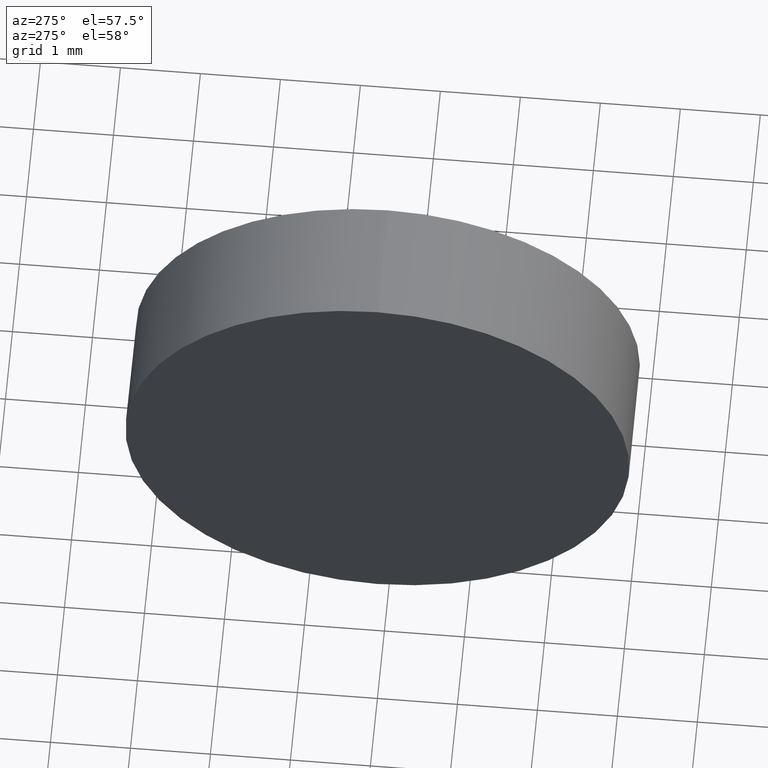
[diagram: clean part render]
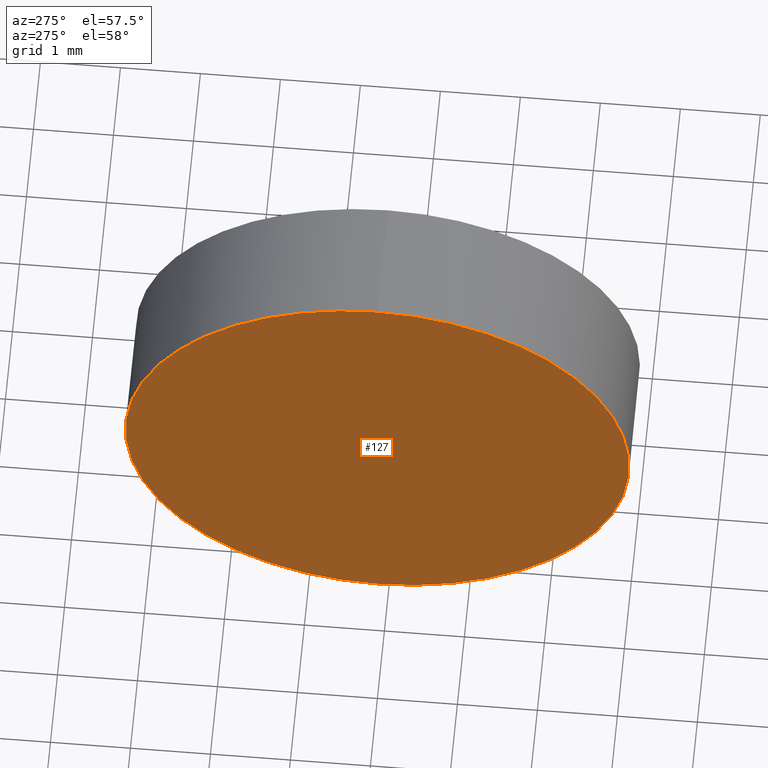
[diagram: same view with one face highlighted and labeled with its STEP entity id]
A machine part, auxiliary view. The second image highlights one B-rep face of the part: STEP entity #127.
In plain terms, the highlighted planar face has unit normal (1, 0, 0).
Its self-contained STEP definition (entity closure, byte-faithful):
#10 = CIRCLE ( 'NONE', #183, 3.149999999999986100 ) ;
#30 = PLANE ( 'NONE',  #54 ) ;
#32 = CARTESIAN_POINT ( 'NONE',  ( 633.5970500243175800, 229.1405012617116200, 0.0000000000000000000 ) ) ;
#48 = CARTESIAN_POINT ( 'NONE',  ( 633.5970500243175800, 229.1405012617116200, 0.0000000000000000000 ) ) ;
#54 = AXIS2_PLACEMENT_3D ( 'NONE', #48, #135, #156 ) ;
#57 = EDGE_LOOP ( 'NONE', ( #98, #85 ) ) ;
#64 = VERTEX_POINT ( 'NONE', #155 ) ;
#71 = DIRECTION ( 'NONE',  ( -1.000000000000000000, -0.0000000000000000000, -0.0000000000000000000 ) ) ;
#74 = FACE_OUTER_BOUND ( 'NONE', #57, .T. ) ;
#77 = AXIS2_PLACEMENT_3D ( 'NONE', #32, #120, #119 ) ;
#85 = ORIENTED_EDGE ( 'NONE', *, *, #130, .T. ) ;
#97 = EDGE_CURVE ( 'NONE', #182, #64, #145, .T. ) ;
#98 = ORIENTED_EDGE ( 'NONE', *, *, #97, .T. ) ;
#119 = DIRECTION ( 'NONE',  ( 0.0000000000000000000, 0.0000000000000000000, 1.000000000000000000 ) ) ;
#120 = DIRECTION ( 'NONE',  ( -1.000000000000000000, -0.0000000000000000000, -0.0000000000000000000 ) ) ;
#127 = ADVANCED_FACE ( 'NONE', ( #74 ), #30, .F. ) ;
#130 = EDGE_CURVE ( 'NONE', #64, #182, #10, .T. ) ;
#135 = DIRECTION ( 'NONE',  ( 1.000000000000000000, 0.0000000000000000000, 0.0000000000000000000 ) ) ;
#145 = CIRCLE ( 'NONE', #77, 3.149999999999986100 ) ;
#155 = CARTESIAN_POINT ( 'NONE',  ( 633.5970500243175800, 229.1405012617116200, -3.149999999999986100 ) ) ;
#156 = DIRECTION ( 'NONE',  ( 0.0000000000000000000, 0.0000000000000000000, -1.000000000000000000 ) ) ;
#163 = CARTESIAN_POINT ( 'NONE',  ( 633.5970500243175800, 229.1405012617116200, 3.149999999999986100 ) ) ;
#175 = CARTESIAN_POINT ( 'NONE',  ( 633.5970500243175800, 229.1405012617116200, 0.0000000000000000000 ) ) ;
#176 = DIRECTION ( 'NONE',  ( 0.0000000000000000000, 0.0000000000000000000, 1.000000000000000000 ) ) ;
#182 = VERTEX_POINT ( 'NONE', #163 ) ;
#183 = AXIS2_PLACEMENT_3D ( 'NONE', #175, #71, #176 ) ;